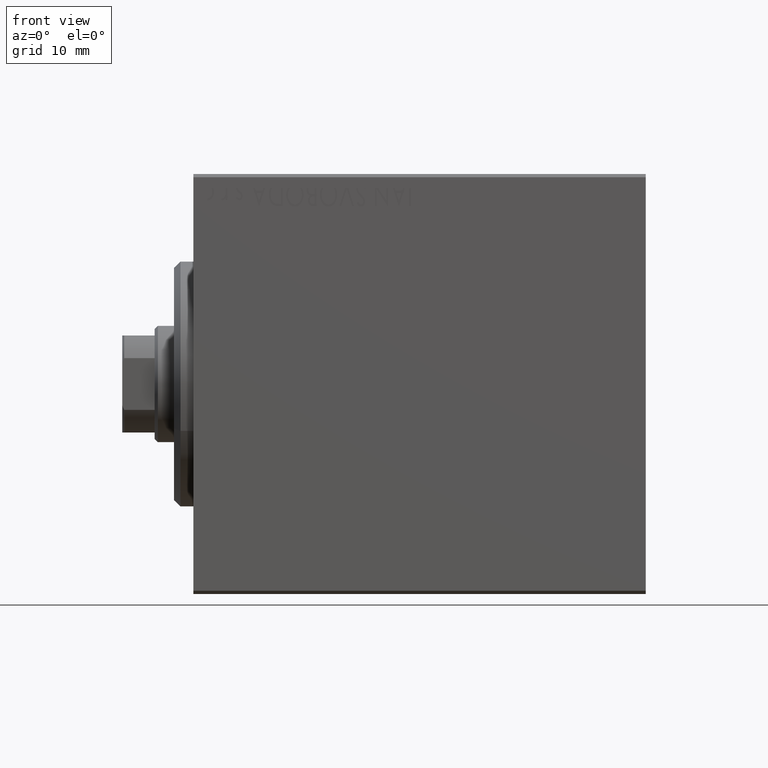
[diagram: clean part render]
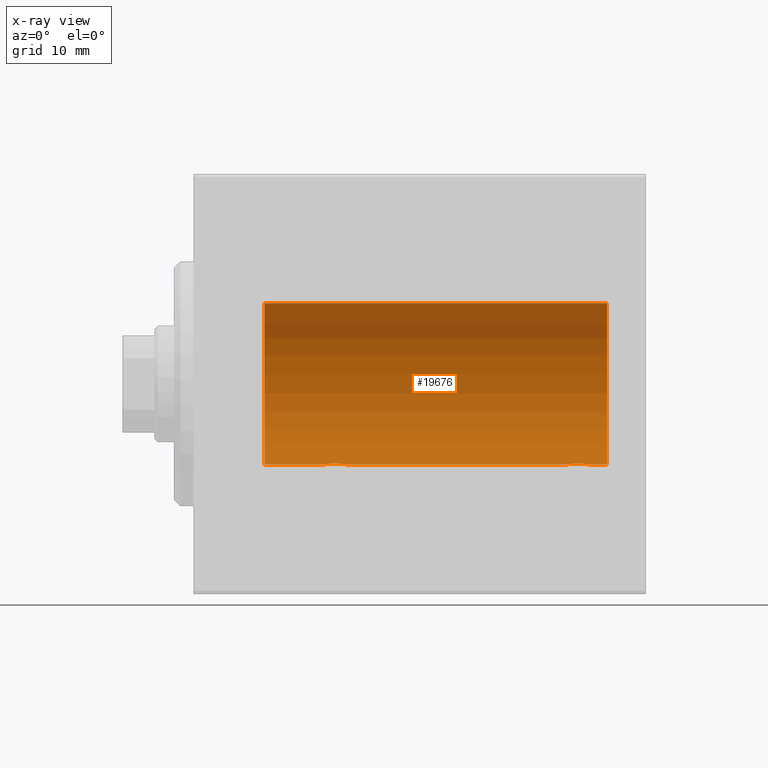
[diagram: x-ray — body ghosted, one internal face saturated and labeled with its STEP entity id]
A machine part, front view, then the same camera in x-ray: the body is ghosted and one INTERNAL B-rep face — a face not visible from any outside direction — is saturated and labeled: STEP entity #19676.
In plain terms, the highlighted cylindrical surface (partial cylindrical patch) has radius 12.5 mm, axis along (-1, -0, -0).
Its self-contained STEP definition (entity closure, byte-faithful):
#21 = ORIENTED_EDGE ( 'NONE', *, *, #39342, .F. ) ;
#25 = CARTESIAN_POINT ( 'NONE',  ( 64.00000000000000000, 1.530808498934191521E-15, -12.50000000000000000 ) ) ;
#620 = CARTESIAN_POINT ( 'NONE',  ( 21.73788193668374902, 1.999901172190678533, -12.33897869807161385 ) ) ;
#828 = CARTESIAN_POINT ( 'NONE',  ( 64.00000000000000000, 0.000000000000000000, 12.50000000000000000 ) ) ;
#1679 = CIRCLE ( 'NONE', #8055, 12.50000000000000000 ) ;
#2010 = EDGE_CURVE ( 'NONE', #22685, #38521, #30068, .T. ) ;
#2179 = DIRECTION ( 'NONE',  ( -1.000000000000000000, -0.000000000000000000, -0.000000000000000000 ) ) ;
#2195 = EDGE_CURVE ( 'NONE', #29620, #38521, #13289, .T. ) ;
#2235 = CARTESIAN_POINT ( 'NONE',  ( 57.56395648222637362, 0.5184196815546008308, -12.48990118705761354 ) ) ;
#2882 = CARTESIAN_POINT ( 'NONE',  ( 60.01937350851554243, 1.935814255713572019, -12.34922241902462758 ) ) ;
#3081 = CARTESIAN_POINT ( 'NONE',  ( 23.79742491916155700, 0.8868029758979399935, -12.46909283808506430 ) ) ;
#3299 = DIRECTION ( 'NONE',  ( -1.000000000000000000, -0.000000000000000000, -0.000000000000000000 ) ) ;
#3351 = FACE_OUTER_BOUND ( 'NONE', #31310, .T. ) ;
#3402 = VECTOR ( 'NONE', #18856, 1000.000000000000000 ) ;
#3450 = CARTESIAN_POINT ( 'NONE',  ( 10.99999999999999645, 0.000000000000000000, 12.50000000000000000 ) ) ;
#3961 = CARTESIAN_POINT ( 'NONE',  ( 20.40963319990594016, 1.219754986802279451, -12.44082361696003503 ) ) ;
#4955 = CARTESIAN_POINT ( 'NONE',  ( 10.99999999999999645, 0.000000000000000000, 0.000000000000000000 ) ) ;
#5439 = ORIENTED_EDGE ( 'NONE', *, *, #31110, .F. ) ;
#6234 = DIRECTION ( 'NONE',  ( 0.000000000000000000, 0.000000000000000000, 1.000000000000000000 ) ) ;
#6244 = CARTESIAN_POINT ( 'NONE',  ( 57.90963319990594727, 1.219754986802277896, -12.44082361696003680 ) ) ;
#6437 = CARTESIAN_POINT ( 'NONE',  ( 20.49398366327207910, 1.322451657002076120, -12.43019346654084956 ) ) ;
#6652 = CARTESIAN_POINT ( 'NONE',  ( 24.00000000000000000, 1.530808426277417854E-15, -12.50000000000000000 ) ) ;
#6867 = CARTESIAN_POINT ( 'NONE',  ( 20.77033506126850426, 1.598680238462369951, -12.39873273758732175 ) ) ;
#8055 = AXIS2_PLACEMENT_3D ( 'NONE', #18242, #32266, #42939 ) ;
#8919 = CARTESIAN_POINT ( 'NONE',  ( 57.50000000000002132, 0.1323736289504287567, -12.50000000000000178 ) ) ;
#9357 = CARTESIAN_POINT ( 'NONE',  ( 60.38656313533017084, 1.797558627508995643, -12.37018026341338484 ) ) ;
#9571 = CARTESIAN_POINT ( 'NONE',  ( 57.99398366327209686, 1.322451657002070347, -12.43019346654085489 ) ) ;
#9774 = CARTESIAN_POINT ( 'NONE',  ( 23.00335814299181436, 1.734998657226765939, -12.37922086519035325 ) ) ;
#9784 = CARTESIAN_POINT ( 'NONE',  ( 60.50335814299182857, 1.734998657226762608, -12.37922086519035680 ) ) ;
#9987 = CARTESIAN_POINT ( 'NONE',  ( 23.32102833500698225, 1.507394620545640773, -12.40913174964213184 ) ) ;
#10048 = DIRECTION ( 'NONE',  ( -1.000000000000000000, -0.000000000000000000, -0.000000000000000000 ) ) ;
#10201 = CARTESIAN_POINT ( 'NONE',  ( 20.99316879552500481, 1.747608771958139906, -12.37764291807175354 ) ) ;
#10214 = CARTESIAN_POINT ( 'NONE',  ( 61.29742491916157121, 0.8868029758979365518, -12.46909283808506430 ) ) ;
#10418 = CARTESIAN_POINT ( 'NONE',  ( 22.26269462454597914, 1.986986967296540119, -12.34109209020652465 ) ) ;
#10824 = VECTOR ( 'NONE', #2179, 1000.000000000000000 ) ;
#11775 = ORIENTED_EDGE ( 'NONE', *, *, #2010, .F. ) ;
#12699 = CARTESIAN_POINT ( 'NONE',  ( 60.14415233770295544, 1.897967064543087723, -12.35517291625591874 ) ) ;
#12732 = AXIS2_PLACEMENT_3D ( 'NONE', #4955, #15192, #6234 ) ;
#13289 = B_SPLINE_CURVE_WITH_KNOTS ( 'NONE', 3,
 ( #32509, #8919, #32731, #2235, #32945, #30455, #26689, #6244, #9571, #37137, #19800, #43591, #43803, #26261, #40253, #2882, #12699, #9357, #9784, #39821, #27122, #44019, #29595, #22921, #10214, #36712, #13559, #36924, #33798, #40689 ),
 .UNSPECIFIED., .F., .F.,
 ( 4, 2, 2, 2, 2, 2, 2, 2, 2, 2, 2, 2, 2, 2, 4 ),
 ( 8.524058063799960461E-19, 0.0003914362731607507980, 0.0007828725463215007287, 0.001174308819482250280, 0.001565745092642999723, 0.002348617638964514438, 0.003131490185286029369, 0.003522926458446797027, 0.003914362731607565551, 0.004305799004768333209, 0.004697235277929100866, 0.005088671551089869391, 0.005480107824250637048, 0.005871544097411405573, 0.006262980370572173230 ),
 .UNSPECIFIED. ) ;
#13337 = CARTESIAN_POINT ( 'NONE',  ( 23.98690384766256400, 0.2633501011236120681, -12.49788564268284041 ) ) ;
#13559 = CARTESIAN_POINT ( 'NONE',  ( 61.43561774521850083, 0.5201193324741332225, -12.48983485452574982 ) ) ;
#13623 = CARTESIAN_POINT ( 'NONE',  ( 57.50000000000000000, -7.533308568696040923E-15, -12.50000000000000000 ) ) ;
#13749 = EDGE_CURVE ( 'NONE', #29620, #28892, #26401, .T. ) ;
#13767 = CARTESIAN_POINT ( 'NONE',  ( 19.99999999999999645, -3.966047509268588167E-15, -12.50000000000000000 ) ) ;
#13815 = CARTESIAN_POINT ( 'NONE',  ( 64.00000000000000000, 0.000000000000000000, 0.000000000000000000 ) ) ;
#13984 = ORIENTED_EDGE ( 'NONE', *, *, #35608, .T. ) ;
#14210 = CARTESIAN_POINT ( 'NONE',  ( 20.20300788371381273, 0.8876934327478117615, -12.46903010196599304 ) ) ;
#15192 = DIRECTION ( 'NONE',  ( -1.000000000000000000, 0.000000000000000000, 0.000000000000000000 ) ) ;
#16674 = CARTESIAN_POINT ( 'NONE',  ( 23.89773031393658087, 0.6448065707253023415, -12.48394649977302073 ) ) ;
#17325 = CARTESIAN_POINT ( 'NONE',  ( 22.88656313533016373, 1.797558627508998086, -12.37018026341338839 ) ) ;
#17542 = CARTESIAN_POINT ( 'NONE',  ( 21.47436412829510033, 1.947190906025044077, -12.34781876294798053 ) ) ;
#17909 = VECTOR ( 'NONE', #3299, 1000.000000000000000 ) ;
#18242 = CARTESIAN_POINT ( 'NONE',  ( 64.00000000000000000, 0.000000000000000000, 0.000000000000000000 ) ) ;
#18257 = VERTEX_POINT ( 'NONE', #3450 ) ;
#18856 = DIRECTION ( 'NONE',  ( -1.000000000000000000, -0.000000000000000000, -0.000000000000000000 ) ) ;
#18877 = VERTEX_POINT ( 'NONE', #828 ) ;
#19181 = CARTESIAN_POINT ( 'NONE',  ( 64.00000000000000000, 1.530808498934191521E-15, -12.50000000000000000 ) ) ;
#19676 = ADVANCED_FACE ( 'NONE', ( #3351 ), #20482, .F. ) ;
#19800 = CARTESIAN_POINT ( 'NONE',  ( 58.49316879552502257, 1.747608771958137241, -12.37764291807175709 ) ) ;
#19997 = CARTESIAN_POINT ( 'NONE',  ( 23.21980790594580313, 1.590288205413975309, -12.39864157855465088 ) ) ;
#20210 = LINE ( 'NONE', #33788, #17909 ) ;
#20482 = CYLINDRICAL_SURFACE ( 'NONE', #24008, 12.50000000000000000 ) ;
#20649 = CARTESIAN_POINT ( 'NONE',  ( 20.06395648222636652, 0.5184196815546032733, -12.48990118705761532 ) ) ;
#20708 = EDGE_CURVE ( 'NONE', #18257, #31210, #43239, .T. ) ;
#21355 = DIRECTION ( 'NONE',  ( 0.000000000000000000, 0.000000000000000000, 1.000000000000000000 ) ) ;
#22685 = VERTEX_POINT ( 'NONE', #19181 ) ;
#22921 = CARTESIAN_POINT ( 'NONE',  ( 61.23470742397612554, 1.003863686549173462, -12.46009879577771429 ) ) ;
#23060 = CARTESIAN_POINT ( 'NONE',  ( 64.00000000000000000, 1.530808498934191521E-15, -12.50000000000000000 ) ) ;
#23553 = CARTESIAN_POINT ( 'NONE',  ( 24.00000000000000711, 0.1306394121199392910, -12.50000000000000533 ) ) ;
#24008 = AXIS2_PLACEMENT_3D ( 'NONE', #13815, #38700, #21355 ) ;
#24735 = B_SPLINE_CURVE_WITH_KNOTS ( 'NONE', 3,
 ( #13767, #37772, #34443, #20649, #30655, #14210, #26890, #3961, #6437, #6867, #10201, #17542, #620, #40894, #10418, #30222, #27760, #17325, #9774, #19997, #9987, #37556, #34223, #36914, #3081, #16674, #43792, #13337, #23553, #6652 ),
 .UNSPECIFIED., .F., .F.,
 ( 4, 2, 2, 2, 2, 2, 2, 2, 2, 2, 2, 2, 2, 2, 4 ),
 ( 3.611342868676865251E-19, 0.0003914362731607586585, 0.0007828725463215168833, 0.001174308819482275217, 0.001565745092643033550, 0.002348617638964549999, 0.003131490185286066666, 0.003522926458446830420, 0.003914362731607594174, 0.004305799004768357495, 0.004697235277929121683, 0.005088671551089885003, 0.005480107824250649191, 0.005871544097411412512, 0.006262980370572176700 ),
 .UNSPECIFIED. ) ;
#25534 = CARTESIAN_POINT ( 'NONE',  ( 64.00000000000000000, 1.530808498934191521E-15, -12.50000000000000000 ) ) ;
#25631 = ORIENTED_EDGE ( 'NONE', *, *, #20708, .T. ) ;
#26204 = CARTESIAN_POINT ( 'NONE',  ( 10.99999999999999645, 1.530808498934191521E-15, -12.50000000000000000 ) ) ;
#26261 = CARTESIAN_POINT ( 'NONE',  ( 59.62992629360267216, 2.000049200055399545, -12.33895470450622867 ) ) ;
#26401 = LINE ( 'NONE', #23060, #3402 ) ;
#26410 = CARTESIAN_POINT ( 'NONE',  ( 61.50000000000000711, 1.530808426270318106E-15, -12.50000000000000000 ) ) ;
#26689 = CARTESIAN_POINT ( 'NONE',  ( 57.76446744561862801, 1.002494658017153872, -12.46021263690097136 ) ) ;
#26890 = CARTESIAN_POINT ( 'NONE',  ( 20.26446744561862801, 1.002494658017155871, -12.46021263690096958 ) ) ;
#27122 = CARTESIAN_POINT ( 'NONE',  ( 60.82102833500698580, 1.507394620545638331, -12.40913174964213184 ) ) ;
#27760 = CARTESIAN_POINT ( 'NONE',  ( 22.64415233770293412, 1.897967064543090165, -12.35517291625592051 ) ) ;
#28644 = ORIENTED_EDGE ( 'NONE', *, *, #13749, .F. ) ;
#28892 = VERTEX_POINT ( 'NONE', #33377 ) ;
#29541 = LINE ( 'NONE', #25534, #10824 ) ;
#29595 = CARTESIAN_POINT ( 'NONE',  ( 61.08991408680628155, 1.220297236145721387, -12.44076681548080110 ) ) ;
#29620 = VERTEX_POINT ( 'NONE', #13623 ) ;
#29894 = ORIENTED_EDGE ( 'NONE', *, *, #2195, .T. ) ;
#30068 = LINE ( 'NONE', #25, #35197 ) ;
#30222 = CARTESIAN_POINT ( 'NONE',  ( 22.51937350851555308, 1.935814255713574905, -12.34922241902463114 ) ) ;
#30455 = CARTESIAN_POINT ( 'NONE',  ( 57.70300788371382339, 0.8876934327478099851, -12.46903010196599659 ) ) ;
#30655 = CARTESIAN_POINT ( 'NONE',  ( 20.10252270298193622, 0.6455696738844897142, -12.48390768591463207 ) ) ;
#31110 = EDGE_CURVE ( 'NONE', #32707, #31210, #29541, .T. ) ;
#31210 = VERTEX_POINT ( 'NONE', #26204 ) ;
#31310 = EDGE_LOOP ( 'NONE', ( #11775, #21, #13984, #25631, #5439, #41467, #28644, #29894 ) ) ;
#32266 = DIRECTION ( 'NONE',  ( -1.000000000000000000, 0.000000000000000000, 0.000000000000000000 ) ) ;
#32509 = CARTESIAN_POINT ( 'NONE',  ( 57.50000000000000000, -7.533308568696040923E-15, -12.50000000000000000 ) ) ;
#32707 = VERTEX_POINT ( 'NONE', #38500 ) ;
#32731 = CARTESIAN_POINT ( 'NONE',  ( 57.51301208516348851, 0.2624928479599860642, -12.49789934882883458 ) ) ;
#32945 = CARTESIAN_POINT ( 'NONE',  ( 57.60252270298195043, 0.6455696738844883820, -12.48390768591463384 ) ) ;
#33377 = CARTESIAN_POINT ( 'NONE',  ( 24.00000000000000000, 1.530808426277417854E-15, -12.50000000000000000 ) ) ;
#33788 = CARTESIAN_POINT ( 'NONE',  ( 64.00000000000000000, 0.000000000000000000, 12.50000000000000000 ) ) ;
#33798 = CARTESIAN_POINT ( 'NONE',  ( 61.50000000000001421, 0.1306394121199392355, -12.50000000000000178 ) ) ;
#34223 = CARTESIAN_POINT ( 'NONE',  ( 23.58991408680628155, 1.220297236145721609, -12.44076681548080288 ) ) ;
#34443 = CARTESIAN_POINT ( 'NONE',  ( 20.01301208516349206, 0.2624928479599882847, -12.49789934882883458 ) ) ;
#35197 = VECTOR ( 'NONE', #10048, 1000.000000000000000 ) ;
#35604 = EDGE_CURVE ( 'NONE', #32707, #28892, #24735, .T. ) ;
#35608 = EDGE_CURVE ( 'NONE', #18877, #18257, #20210, .T. ) ;
#36712 = CARTESIAN_POINT ( 'NONE',  ( 61.39773031393659863, 0.6448065707252995660, -12.48394649977301718 ) ) ;
#36914 = CARTESIAN_POINT ( 'NONE',  ( 23.73470742397611843, 1.003863686549172352, -12.46009879577771606 ) ) ;
#36924 = CARTESIAN_POINT ( 'NONE',  ( 61.48690384766256045, 0.2633501011236106804, -12.49788564268283864 ) ) ;
#37137 = CARTESIAN_POINT ( 'NONE',  ( 58.27033506126852558, 1.598680238462363956, -12.39873273758732353 ) ) ;
#37556 = CARTESIAN_POINT ( 'NONE',  ( 23.50733550364322255, 1.321095788880538136, -12.43034574091277911 ) ) ;
#37772 = CARTESIAN_POINT ( 'NONE',  ( 19.99999999999999645, 0.1323736289504319763, -12.50000000000000000 ) ) ;
#38500 = CARTESIAN_POINT ( 'NONE',  ( 19.99999999999999645, -3.966047509268588167E-15, -12.50000000000000000 ) ) ;
#38521 = VERTEX_POINT ( 'NONE', #26410 ) ;
#38700 = DIRECTION ( 'NONE',  ( -1.000000000000000000, -0.000000000000000000, -0.000000000000000000 ) ) ;
#39342 = EDGE_CURVE ( 'NONE', #18877, #22685, #1679, .T. ) ;
#39821 = CARTESIAN_POINT ( 'NONE',  ( 60.71980790594580668, 1.590288205413971090, -12.39864157855465088 ) ) ;
#40253 = CARTESIAN_POINT ( 'NONE',  ( 59.76269462454598624, 1.986986967296537232, -12.34109209020652465 ) ) ;
#40689 = CARTESIAN_POINT ( 'NONE',  ( 61.50000000000000711, 1.530808426270318106E-15, -12.50000000000000000 ) ) ;
#40894 = CARTESIAN_POINT ( 'NONE',  ( 22.12992629360264729, 2.000049200055402210, -12.33895470450623044 ) ) ;
#41467 = ORIENTED_EDGE ( 'NONE', *, *, #35604, .T. ) ;
#42939 = DIRECTION ( 'NONE',  ( 0.000000000000000000, 0.000000000000000000, 1.000000000000000000 ) ) ;
#43239 = CIRCLE ( 'NONE', #12732, 12.50000000000000000 ) ;
#43591 = CARTESIAN_POINT ( 'NONE',  ( 58.97436412829508612, 1.947190906025040746, -12.34781876294798231 ) ) ;
#43792 = CARTESIAN_POINT ( 'NONE',  ( 23.93561774521849728, 0.5201193324741352209, -12.48983485452574982 ) ) ;
#43803 = CARTESIAN_POINT ( 'NONE',  ( 59.23788193668374902, 1.999901172190674981, -12.33897869807161207 ) ) ;
#44019 = CARTESIAN_POINT ( 'NONE',  ( 61.00733550364321900, 1.321095788880535915, -12.43034574091278088 ) ) ;